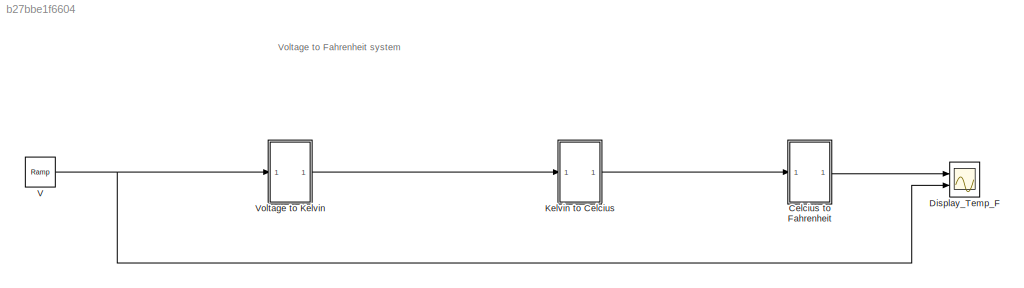
MODEL slx_b27bbe1f6604
KIND model
CONFIG AbsTol = auto
CONFIG EnableMultiTasking = on
CONFIG FixedStep = auto
CONFIG MaxStep = auto
CONFIG MinStep = auto
CONFIG RelTol = 1e-3
CONFIG SampleTimeConstraint = Unconstrained
CONFIG SolverName = ode45
CONFIG StartTime = 0.0
CONFIG StopTime = 220
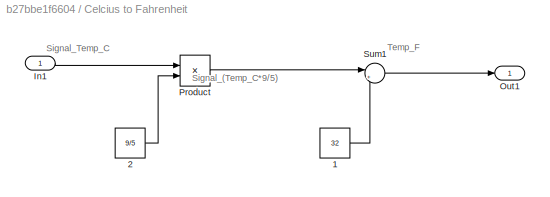
BLOCK [SubSystem] Celcius to Fahrenheit
  Ports = [1, 1]
  RequestExecContextInheritance = off
BLOCK [Constant] Celcius to Fahrenheit/ 1
  Value = 32
BLOCK [Constant] Celcius to Fahrenheit/ 2
  Value = 9/5
BLOCK [Inport] Celcius to Fahrenheit/In1
BLOCK [Outport] Celcius to Fahrenheit/Out1
BLOCK [Product] Celcius to Fahrenheit/Product
  Ports = [2, 1]
BLOCK [Sum] Celcius to Fahrenheit/Sum1
  Inputs = |++
  Ports = [2, 1]
BLOCK [Scope] Display_Temp_F
  Floating = off
  NumInputPorts = 2
  Ports = [2]
  ScopeSpecificationString = Simulink.scopes.TimeScopeBlockCfg('CurrentConfiguration', extmgr.ConfigurationSet(extmgr.Configuration('Core','General UI',true),extmgr.Configuration('Core','Source UI',true),extmgr.Configuration('Sources','WiredSimulink',true,'DataLoggingLimitDataPoints',true,'DataLoggingVariableName','ScopeData3','DataLoggingDecimation','1','DataLoggingDecimateData',true,'DataLoggingSaveFormat','Array'),extmgr.C...<+1689ch>
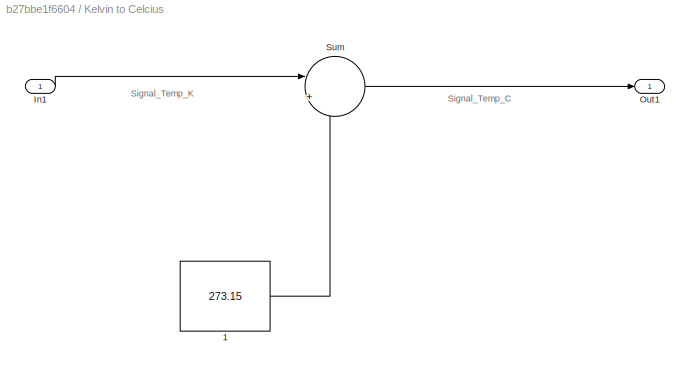
BLOCK [SubSystem] Kelvin to Celcius
  Ports = [1, 1]
  RequestExecContextInheritance = off
BLOCK [Constant] Kelvin to Celcius/ 1
  Value = 273.15
BLOCK [Inport] Kelvin to Celcius/In1
BLOCK [Outport] Kelvin to Celcius/Out1
BLOCK [Sum] Kelvin to Celcius/Sum
  Inputs = |+-
  Ports = [2, 1]
BLOCK [Reference] V  REF=simulink/Sources/Ramp
  Ports = [0, 1]
  SourceBlock = simulink/Sources/Ramp
  SourceProductBaseCode = SL
  SourceType = Ramp
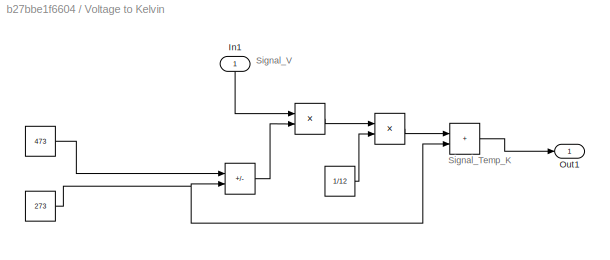
BLOCK [SubSystem] Voltage to Kelvin
  Ports = [1, 1]
  RequestExecContextInheritance = off
BLOCK [Constant] Voltage to Kelvin/ 
  Value = 473
BLOCK [Constant] Voltage to Kelvin/  
  Value = 273
BLOCK [Constant] Voltage to Kelvin/   
  Value = 1/12
BLOCK [Product] Voltage to Kelvin/    
  Ports = [2, 1]
BLOCK [Sum] Voltage to Kelvin/     
  IconShape = rectangular
  Inputs = +-
  Ports = [2, 1]
BLOCK [Sum] Voltage to Kelvin/      
  IconShape = rectangular
  Ports = [2, 1]
BLOCK [Product] Voltage to Kelvin/       
  Ports = [2, 1]
BLOCK [Inport] Voltage to Kelvin/In1
  NameLocation = right
BLOCK [Outport] Voltage to Kelvin/Out1
ANNOTATION (root): Voltage to Fahrenheit system
ANNOTATION Celcius to Fahrenheit: Signal_(Temp_C*9/5)
ANNOTATION Celcius to Fahrenheit: Signal_Temp_C
ANNOTATION Celcius to Fahrenheit: Temp_F
ANNOTATION Kelvin to Celcius: Signal_Temp_C
ANNOTATION Kelvin to Celcius: Signal_Temp_K
ANNOTATION Voltage to Kelvin: Signal_Temp_K
ANNOTATION Voltage to Kelvin: Signal_V
LINE Celcius to Fahrenheit/ 1:1 -> Celcius to Fahrenheit/Sum1:2
LINE Celcius to Fahrenheit/ 2:1 -> Celcius to Fahrenheit/Product:2
LINE Celcius to Fahrenheit/In1:1 -> Celcius to Fahrenheit/Product:1
LINE Celcius to Fahrenheit/Product:1 -> Celcius to Fahrenheit/Sum1:1
LINE Celcius to Fahrenheit/Sum1:1 -> Celcius to Fahrenheit/Out1:1
LINE Celcius to Fahrenheit:1 -> Display_Temp_F:1
LINE Kelvin to Celcius/ 1:1 -> Kelvin to Celcius/Sum:2
LINE Kelvin to Celcius/In1:1 -> Kelvin to Celcius/Sum:1
LINE Kelvin to Celcius/Sum:1 -> Kelvin to Celcius/Out1:1
LINE Kelvin to Celcius:1 -> Celcius to Fahrenheit:1
NET V:1 -> Display_Temp_F:2, Voltage to Kelvin:1
LINE Voltage to Kelvin/       :1 -> Voltage to Kelvin/      :1
LINE Voltage to Kelvin/      :1 -> Voltage to Kelvin/Out1:1
LINE Voltage to Kelvin/     :1 -> Voltage to Kelvin/    :2
LINE Voltage to Kelvin/    :1 -> Voltage to Kelvin/       :1
LINE Voltage to Kelvin/   :1 -> Voltage to Kelvin/       :2
NET Voltage to Kelvin/  :1 -> Voltage to Kelvin/      :2, Voltage to Kelvin/     :2
LINE Voltage to Kelvin/ :1 -> Voltage to Kelvin/     :1
LINE Voltage to Kelvin/In1:1 -> Voltage to Kelvin/    :1
LINE Voltage to Kelvin:1 -> Kelvin to Celcius:1
note: NET lines group one-source signal fan-out (src -> all destinations, sorted); 1:1 wires keep LINE
